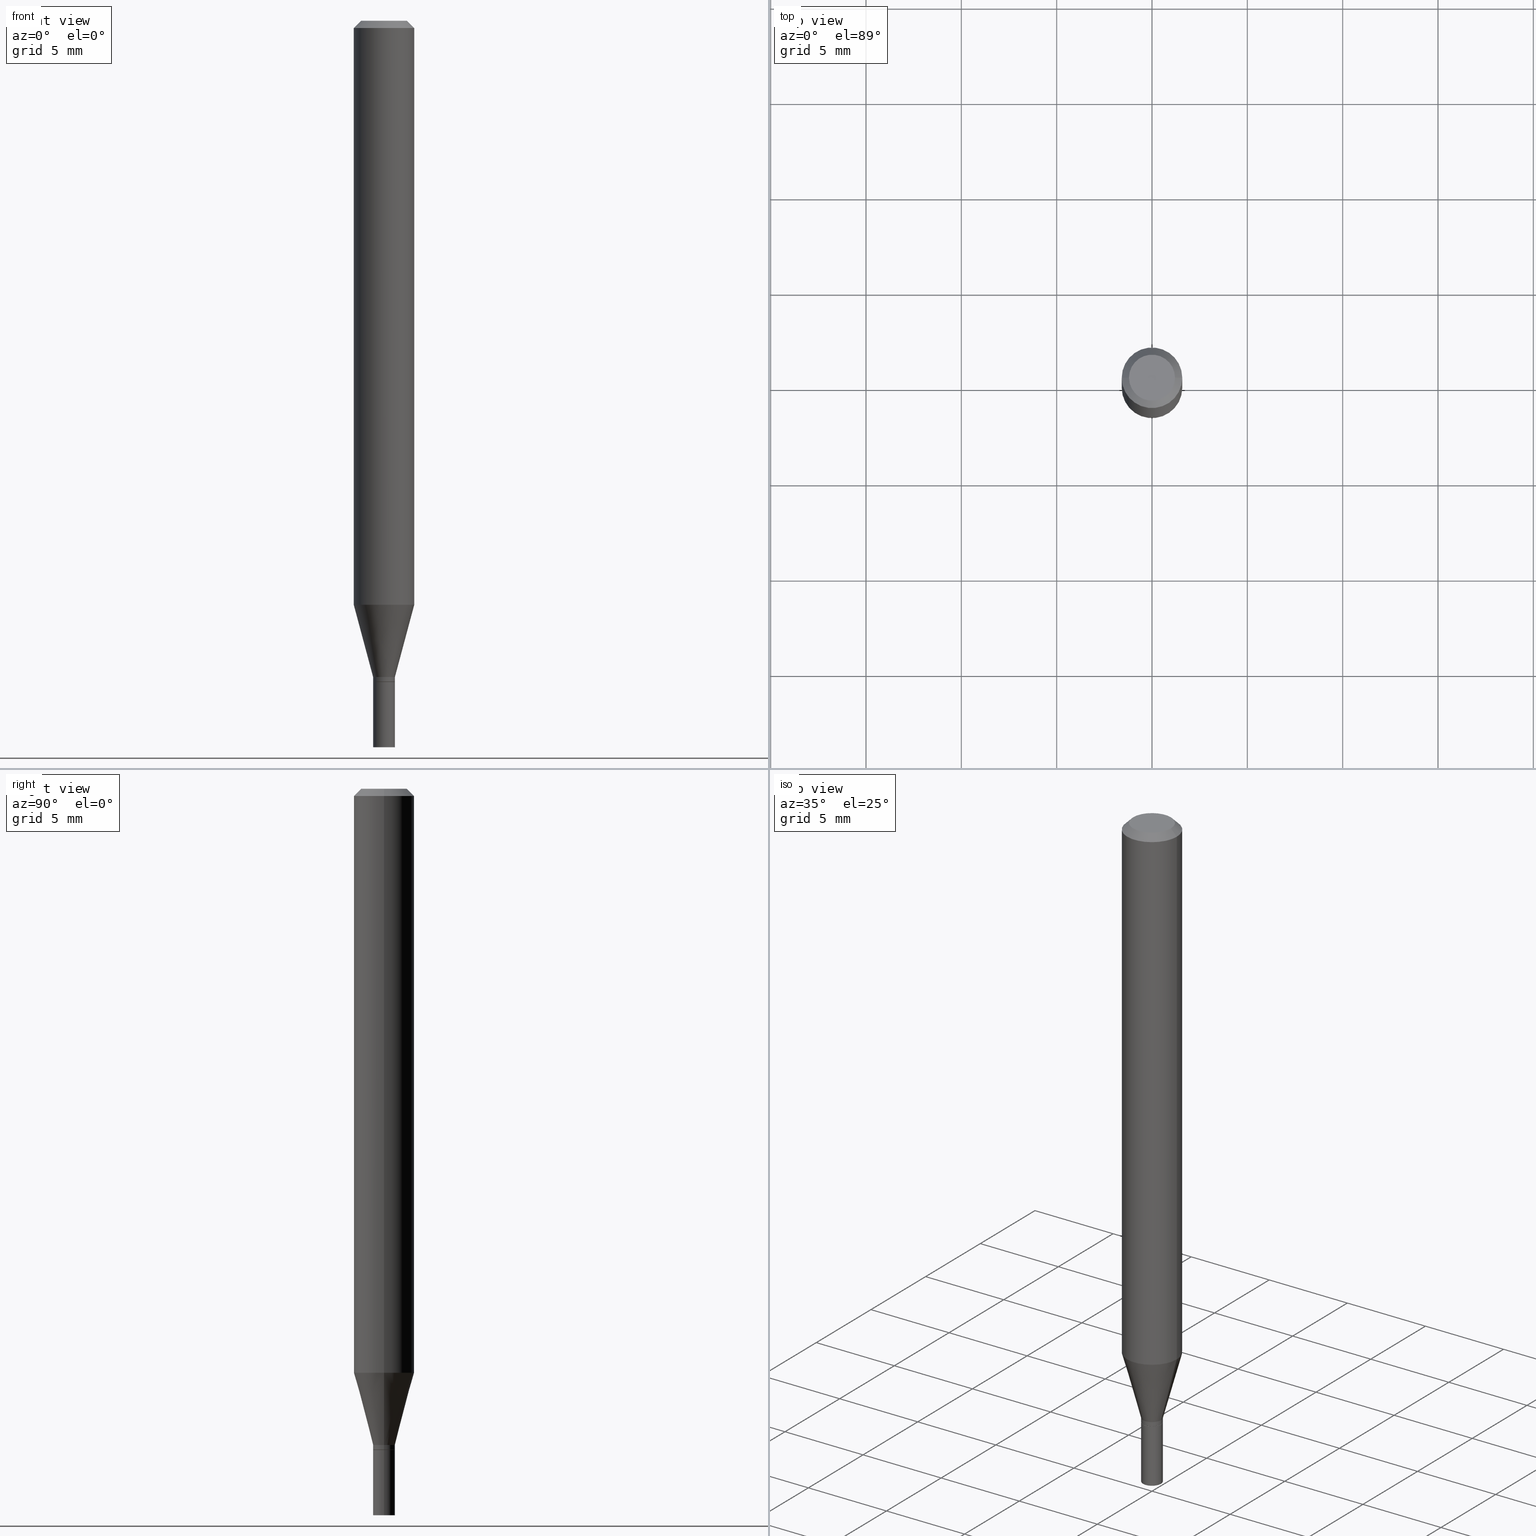
[diagram: canonical four-view strip — front | top / right | iso, engineering-drawing reading convention]
A machine part, canonical four-view strip (front | top / right | iso — engineering-drawing reading convention). The complete STEP part file that produces these views, byte-faithful:
ISO-10303-21;
HEADER;
FILE_DESCRIPTION (( 'STEP AP203' ),
    '1' );
FILE_NAME ('02474.STEP',
    '2024-03-18T20:49:02',
    ( '' ),
    ( '' ),
    'SwSTEP 2.0',
    'SolidWorks 2023',
    '' );
FILE_SCHEMA (( 'CONFIG_CONTROL_DESIGN' ));
ENDSEC;

DATA;
#1 = CARTESIAN_POINT ( 'NONE',  ( 2.948545679060551070E-29, -4.209741784122813615E-15, -1.205717967697245152 ) ) ;
#2 = CARTESIAN_POINT ( 'NONE',  ( 0.02249999999999991937, -4.888073874380403263E-15, -1.355000000000000204 ) ) ;
#3 = CARTESIAN_POINT ( 'NONE',  ( 3.338064920442711836E-29, -4.765872027520893280E-15, -1.364999999999999991 ) ) ;
#4 = CC_DESIGN_PERSON_AND_ORGANIZATION_ASSIGNMENT ( #61, #309, ( #304 ) ) ;
#5 = CARTESIAN_POINT ( 'NONE',  ( 3.338064920442711836E-29, -4.765872027520893280E-15, -1.364999999999999991 ) ) ;
#6 = ORIENTED_EDGE ( 'NONE', *, *, #122, .F. ) ;
#7 = EDGE_CURVE ( 'NONE', #165, #277, #445, .T. ) ;
#8 = DIRECTION ( 'NONE',  ( 1.000000000000000000, -6.982962677686269077E-15, 0.000000000000000000 ) ) ;
#9 = ORIENTED_EDGE ( 'NONE', *, *, #307, .T. ) ;
#10 = EDGE_CURVE ( 'NONE', #427, #78, #17, .T. ) ;
#11 = ORIENTED_EDGE ( 'NONE', *, *, #84, .T. ) ;
#12 = LENGTH_MEASURE_WITH_UNIT ( LENGTH_MEASURE( 0.02539999999999999897 ), #331 );
#13 = VECTOR ( 'NONE', #335, 39.37007874015748143 ) ;
#14 = ORIENTED_EDGE ( 'NONE', *, *, #357, .T. ) ;
#15 = DIRECTION ( 'NONE',  ( 1.000000000000000000, -6.982962677686265922E-15, 4.876176775795935793E-29 ) ) ;
#16 = CARTESIAN_POINT ( 'NONE',  ( 3.313610232380860851E-29, -4.730957214132463209E-15, -1.355000000000000204 ) ) ;
#17 = LINE ( 'NONE', #403, #249 ) ;
#18 = CALENDAR_DATE ( 2024, 18, 3 ) ;
#19 = CARTESIAN_POINT ( 'NONE',  ( 3.668203209277705088E-31, -5.237222008264718399E-17, -0.01499999999999999944 ) ) ;
#20 = APPROVAL_PERSON_ORGANIZATION ( #130, #431, #195 ) ;
#21 = PLANE ( 'NONE',  #185 ) ;
#22 = ADVANCED_FACE ( 'NONE', ( #450 ), #340, .T. ) ;
#23 = DIRECTION ( 'NONE',  ( -2.438088387897960049E-29, 3.491481338843145188E-15, 1.000000000000000000 ) ) ;
#24 = PRODUCT_DEFINITION ( 'UNKNOWN', '', #304, #410 ) ;
#25 = APPLICATION_PROTOCOL_DEFINITION ( 'international standard', 'config_control_design', 1994, #192 ) ;
#26 = EDGE_LOOP ( 'NONE', ( #408, #440, #57, #310 ) ) ;
#27 = AXIS2_PLACEMENT_3D ( 'NONE', #353, #429, #273 ) ;
#28 = DIRECTION ( 'NONE',  ( 2.445468806185136597E-29, -3.491481338843145583E-15, -1.000000000000000000 ) ) ;
#29 = EDGE_CURVE ( 'NONE', #145, #308, #438, .T. ) ;
#30 = ORIENTED_EDGE ( 'NONE', *, *, #348, .F. ) ;
#31 = FACE_OUTER_BOUND ( 'NONE', #128, .T. ) ;
#32 = SECURITY_CLASSIFICATION ( '', '', #313 ) ;
#33 = CARTESIAN_POINT ( 'NONE',  ( 0.02199999999999999872, -4.919497206429991117E-15, -1.364999999999999991 ) ) ;
#34 = DIRECTION ( 'NONE',  ( 1.000000000000000000, -6.982962677686266711E-15, 4.876176775795935793E-29 ) ) ;
#35 = FACE_OUTER_BOUND ( 'NONE', #291, .T. ) ;
#36 = VERTEX_POINT ( 'NONE', #183 ) ;
#37 = CARTESIAN_POINT ( 'NONE',  ( 0.000000000000000000, 0.000000000000000000, 0.000000000000000000 ) ) ;
#38 = VERTEX_POINT ( 'NONE', #411 ) ;
#39 = DIRECTION ( 'NONE',  ( -2.445468806185136597E-29, 3.491481338843145583E-15, 1.000000000000000000 ) ) ;
#40 = EDGE_CURVE ( 'NONE', #38, #36, #462, .T. ) ;
#41 = PLANE ( 'NONE',  #296 ) ;
#42 = ORIENTED_EDGE ( 'NONE', *, *, #7, .T. ) ;
#43 = APPLICATION_CONTEXT ( 'configuration controlled 3d designs of mechanical parts and assemblies' ) ;
#44 = VECTOR ( 'NONE', #72, 39.37007874015747433 ) ;
#45 = CC_DESIGN_DATE_AND_TIME_ASSIGNMENT ( #233, #390, ( #32 ) ) ;
#46 = MECHANICAL_CONTEXT ( 'NONE', #192, 'mechanical' ) ;
#47 = EDGE_LOOP ( 'NONE', ( #219, #14, #280, #6 ) ) ;
#48 = DIRECTION ( 'NONE',  ( 1.000000000000000000, -6.982962677686267499E-15, 4.852736867747366768E-29 ) ) ;
#49 = COORDINATED_UNIVERSAL_TIME_OFFSET ( 5, 0, .BEHIND. ) ;
#50 = CARTESIAN_POINT ( 'NONE',  ( 0.000000000000000000, 0.000000000000000000, 0.000000000000000000 ) ) ;
#51 = ORIENTED_EDGE ( 'NONE', *, *, #220, .F. ) ;
#52 = DIRECTION ( 'NONE',  ( 0.7071067811865420216, -7.319954787623237113E-15, -0.7071067811865530128 ) ) ;
#53 = ADVANCED_FACE ( 'NONE', ( #88 ), #443, .F. ) ;
#54 = AXIS2_PLACEMENT_3D ( 'NONE', #50, #448, #373 ) ;
#55 = CIRCLE ( 'NONE', #240, 0.02199999999999999872 ) ;
#56 = DIRECTION ( 'NONE',  ( -2.445468806185136877E-29, 3.491481338843145188E-15, 1.000000000000000000 ) ) ;
#57 = ORIENTED_EDGE ( 'NONE', *, *, #444, .F. ) ;
#58 = DIRECTION ( 'NONE',  ( -2.445468806185136597E-29, 3.491481338843145583E-15, 1.000000000000000000 ) ) ;
#59 = AXIS2_PLACEMENT_3D ( 'NONE', #1, #268, #63 ) ;
#60 = CIRCLE ( 'NONE', #148, 0.06250000000000000000 ) ;
#61 = PERSON_AND_ORGANIZATION ( #109, #126 ) ;
#62 = ORIENTED_EDGE ( 'NONE', *, *, #381, .F. ) ;
#63 = DIRECTION ( 'NONE',  ( 1.000000000000000000, -6.982962677686270655E-15, 0.000000000000000000 ) ) ;
#64 = LINE ( 'NONE', #461, #294 ) ;
#65 = CARTESIAN_POINT ( 'NONE',  ( 3.668203209277705088E-31, -5.237222008264718399E-17, -0.01499999999999999944 ) ) ;
#66 = CIRCLE ( 'NONE', #132, 0.02249999999999991937 ) ;
#67 = DATE_AND_TIME ( #426, #285 ) ;
#68 = DIMENSIONAL_EXPONENTS ( 1.000000000000000000, 0.000000000000000000, 0.000000000000000000, 0.000000000000000000, 0.000000000000000000, 0.000000000000000000, 0.000000000000000000 ) ;
#69 = DIRECTION ( 'NONE',  ( -2.445468806185136597E-29, 3.491481338843145583E-15, 1.000000000000000000 ) ) ;
#70 = FACE_OUTER_BOUND ( 'NONE', #129, .T. ) ;
#71 = EDGE_CURVE ( 'NONE', #190, #272, #123, .T. ) ;
#72 = DIRECTION ( 'NONE',  ( 0.2588190451025213501, 1.565188264969621968E-15, 0.9659258262890682012 ) ) ;
#73 = AXIS2_PLACEMENT_3D ( 'NONE', #423, #267, #34 ) ;
#74 = AXIS2_PLACEMENT_3D ( 'NONE', #144, #101, #230 ) ;
#75 = EDGE_LOOP ( 'NONE', ( #242, #94, #329, #374 ) ) ;
#76 = DIRECTION ( 'NONE',  ( 1.000000000000000000, -6.982962677686245411E-15, 0.000000000000000000 ) ) ;
#77 = ORIENTED_EDGE ( 'NONE', *, *, #338, .T. ) ;
#78 = VERTEX_POINT ( 'NONE', #116 ) ;
#79 = AXIS2_PLACEMENT_3D ( 'NONE', #289, #216, #48 ) ;
#80 = CC_DESIGN_PERSON_AND_ORGANIZATION_ASSIGNMENT ( #260, #92, ( #24 ) ) ;
#81 =( NAMED_UNIT ( * ) PLANE_ANGLE_UNIT ( ) SI_UNIT ( $, .RADIAN. ) );
#82 = CARTESIAN_POINT ( 'NONE',  ( 0.02199999999999999872, -4.919497206429991117E-15, -1.364999999999999991 ) ) ;
#83 = CARTESIAN_POINT ( 'NONE',  ( -0.02249999999999991937, -4.168368836429595565E-15, -1.355000000000000204 ) ) ;
#84 = EDGE_CURVE ( 'NONE', #36, #286, #124, .T. ) ;
#85 = APPROVAL ( #149, 'UNSPECIFIED' ) ;
#86 = AXIS2_PLACEMENT_3D ( 'NONE', #121, #366, #255 ) ;
#87 = AXIS2_PLACEMENT_3D ( 'NONE', #319, #279, #110 ) ;
#88 = FACE_OUTER_BOUND ( 'NONE', #352, .T. ) ;
#89 = DATE_AND_TIME ( #414, #421 ) ;
#90 = ORIENTED_EDGE ( 'NONE', *, *, #40, .F. ) ;
#91 = ORIENTED_EDGE ( 'NONE', *, *, #454, .T. ) ;
#92 = PERSON_AND_ORGANIZATION_ROLE ( 'creator' ) ;
#93 = FACE_OUTER_BOUND ( 'NONE', #434, .T. ) ;
#94 = ORIENTED_EDGE ( 'NONE', *, *, #102, .T. ) ;
#95 = VECTOR ( 'NONE', #52, 39.37007874015748143 ) ;
#96 = AXIS2_PLACEMENT_3D ( 'NONE', #336, #114, #191 ) ;
#97 = CYLINDRICAL_SURFACE ( 'NONE', #73, 0.02249999999999999917 ) ;
#98 = DIRECTION ( 'NONE',  ( -2.445468806185136877E-29, 3.491481338843145188E-15, 1.000000000000000000 ) ) ;
#99 = CARTESIAN_POINT ( 'NONE',  ( -0.02249999999999999917, -4.841674902346784228E-15, -1.500000000000000222 ) ) ;
#100 = ADVANCED_FACE ( 'NONE', ( #184 ), #158, .T. ) ;
#101 = DIRECTION ( 'NONE',  ( -2.445468806185136597E-29, 3.491481338843145583E-15, 1.000000000000000000 ) ) ;
#102 = EDGE_CURVE ( 'NONE', #112, #427, #117, .T. ) ;
#103 = DIRECTION ( 'NONE',  ( 1.000000000000000000, -6.982962677686245411E-15, 0.000000000000000000 ) ) ;
#104 = VECTOR ( 'NONE', #334, 39.37007874015748143 ) ;
#105 = SHAPE_DEFINITION_REPRESENTATION ( #407, #137 ) ;
#106 = DIRECTION ( 'NONE',  ( -2.445468806185136597E-29, 3.491481338843145583E-15, 1.000000000000000000 ) ) ;
#107 = ORIENTED_EDGE ( 'NONE', *, *, #236, .T. ) ;
#108 = DIRECTION ( 'NONE',  ( -1.000000000000000000, 6.982962677686265922E-15, -4.876176775795935793E-29 ) ) ;
#109 = PERSON ( 'UNSPECIFIED', 'UNSPECIFIED', 'UNSPECIFIED', ('UNSPECIFIED'), ('UNSPECIFIED'), ('UNSPECIFIED') ) ;
#110 = DIRECTION ( 'NONE',  ( 1.000000000000000000, -6.982962677686248567E-15, 0.000000000000000000 ) ) ;
#111 = CONICAL_SURFACE ( 'NONE', #405, 0.06250000000000000000, 0.7853981633974405074 ) ;
#112 = VERTEX_POINT ( 'NONE', #83 ) ;
#113 = APPROVAL_ROLE ( '' ) ;
#114 = DIRECTION ( 'NONE',  ( -2.445468806185136597E-29, 3.491481338843145583E-15, 1.000000000000000000 ) ) ;
#115 = ORIENTED_EDGE ( 'NONE', *, *, #307, .F. ) ;
#116 = CARTESIAN_POINT ( 'NONE',  ( -0.06250000000000000000, -1.686967792252667731E-15, -0.01499999999999999944 ) ) ;
#117 = LINE ( 'NONE', #248, #386 ) ;
#118 = AXIS2_PLACEMENT_3D ( 'NONE', #303, #28, #380 ) ;
#119 = LOCAL_TIME ( 16, 49, 2.000000000000000000, #387 ) ;
#120 = EDGE_CURVE ( 'NONE', #318, #190, #451, .T. ) ;
#121 = CARTESIAN_POINT ( 'NONE',  ( 3.668203209277704895E-29, -5.237222008264718177E-15, -1.500000000000000222 ) ) ;
#122 = EDGE_CURVE ( 'NONE', #78, #286, #312, .T. ) ;
#123 = LINE ( 'NONE', #406, #13 ) ;
#124 = LINE ( 'NONE', #245, #95 ) ;
#125 = DATE_AND_TIME ( #18, #212 ) ;
#126 = ORGANIZATION ( 'UNSPECIFIED', 'UNSPECIFIED', '' ) ;
#127 = CARTESIAN_POINT ( 'NONE',  ( -0.02199999999999999872, -4.609552625653671101E-15, -1.364999999999999991 ) ) ;
#128 = EDGE_LOOP ( 'NONE', ( #315, #458, #263, #400 ) ) ;
#129 = EDGE_LOOP ( 'NONE', ( #77, #91, #30, #452 ) ) ;
#130 = PERSON_AND_ORGANIZATION ( #109, #126 ) ;
#131 = EDGE_LOOP ( 'NONE', ( #266, #398, #51, #354 ) ) ;
#132 = AXIS2_PLACEMENT_3D ( 'NONE', #16, #152, #378 ) ;
#133 =( GEOMETRIC_REPRESENTATION_CONTEXT ( 3 ) GLOBAL_UNCERTAINTY_ASSIGNED_CONTEXT ( ( #368 ) ) GLOBAL_UNIT_ASSIGNED_CONTEXT ( ( #243, #81, #287 ) ) REPRESENTATION_CONTEXT ( 'NONE', 'WORKASPACE' ) );
#134 = ADVANCED_FACE ( 'NONE', ( #370 ), #21, .F. ) ;
#135 = CARTESIAN_POINT ( 'NONE',  ( -0.02249999999999992284, -4.604254171305449488E-15, -1.364500000000000046 ) ) ;
#136 = DIRECTION ( 'NONE',  ( -2.445468806185136877E-29, 3.491481338843145188E-15, 1.000000000000000000 ) ) ;
#137 = ADVANCED_BREP_SHAPE_REPRESENTATION ( '02474', ( #344, #343, #186 ), #133 ) ;
#138 = CALENDAR_DATE ( 2024, 18, 3 ) ;
#139 = EDGE_LOOP ( 'NONE', ( #465, #90, #372, #198 ) ) ;
#140 = CARTESIAN_POINT ( 'NONE',  ( 3.338064920442711836E-29, -4.765872027520893280E-15, -1.364999999999999991 ) ) ;
#141 = DIRECTION ( 'NONE',  ( -2.445468806185136597E-29, 3.491481338843145583E-15, 1.000000000000000000 ) ) ;
#142 = CIRCLE ( 'NONE', #87, 0.02249999999999992284 ) ;
#143 = CYLINDRICAL_SURFACE ( 'NONE', #395, 0.02249999999999999917 ) ;
#144 = CARTESIAN_POINT ( 'NONE',  ( 2.948545679060551070E-29, -4.209741784122813615E-15, -1.205717967697245152 ) ) ;
#145 = VERTEX_POINT ( 'NONE', #99 ) ;
#146 = COORDINATED_UNIVERSAL_TIME_OFFSET ( 5, 0, .BEHIND. ) ;
#147 = AXIS2_PLACEMENT_3D ( 'NONE', #226, #222, #232 ) ;
#148 = AXIS2_PLACEMENT_3D ( 'NONE', #179, #154, #456 ) ;
#149 = APPROVAL_STATUS ( 'not_yet_approved' ) ;
#150 = ADVANCED_FACE ( 'NONE', ( #93 ), #383, .F. ) ;
#151 = DIRECTION ( 'NONE',  ( 1.000000000000000000, -6.982962677686249356E-15, 0.000000000000000000 ) ) ;
#152 = DIRECTION ( 'NONE',  ( -2.445468806185136597E-29, 3.491481338843145583E-15, 1.000000000000000000 ) ) ;
#153 = EDGE_CURVE ( 'NONE', #375, #427, #358, .T. ) ;
#154 = DIRECTION ( 'NONE',  ( -2.445468806185136597E-29, 3.491481338843145583E-15, 1.000000000000000000 ) ) ;
#155 = DIRECTION ( 'NONE',  ( 1.000000000000000000, -6.982962677686266711E-15, 0.000000000000000000 ) ) ;
#156 = LOCAL_TIME ( 16, 49, 2.000000000000000000, #49 ) ;
#157 = CARTESIAN_POINT ( 'NONE',  ( 3.576687321579069994E-29, -5.368277968210015545E-15, -1.500000000000000222 ) ) ;
#158 = CYLINDRICAL_SURFACE ( 'NONE', #224, 0.06250000000000000000 ) ;
#159 = PERSON_AND_ORGANIZATION ( #109, #126 ) ;
#160 = AXIS2_PLACEMENT_3D ( 'NONE', #271, #251, #151 ) ;
#161 = PERSON_AND_ORGANIZATION_ROLE ( 'classification_officer' ) ;
#162 = EDGE_CURVE ( 'NONE', #375, #286, #64, .T. ) ;
#163 = EDGE_LOOP ( 'NONE', ( #327, #107, #415, #282 ) ) ;
#164 = APPROVAL_STATUS ( 'not_yet_approved' ) ;
#165 = VERTEX_POINT ( 'NONE', #466 ) ;
#166 = VECTOR ( 'NONE', #385, 39.37007874015748143 ) ;
#167 = AXIS2_PLACEMENT_3D ( 'NONE', #356, #389, #238 ) ;
#168 = DIRECTION ( 'NONE',  ( -1.000000000000000000, 6.982962677686265922E-15, -4.876176775795935793E-29 ) ) ;
#169 = ORIENTED_EDGE ( 'NONE', *, *, #254, .T. ) ;
#170 = DIRECTION ( 'NONE',  ( -1.000000000000000000, 6.982962677686266711E-15, 0.000000000000000000 ) ) ;
#171 = CARTESIAN_POINT ( 'NONE',  ( 0.02249999999999991937, -4.888073874380403263E-15, -1.355000000000000204 ) ) ;
#172 = DIRECTION ( 'NONE',  ( -2.445468806185136597E-29, 3.491481338843145583E-15, 1.000000000000000000 ) ) ;
#173 = CLOSED_SHELL ( 'NONE', ( #420, #416, #194, #223, #457, #325, #100, #391, #397, #53, #369, #22 ) ) ;
#174 = FACE_OUTER_BOUND ( 'NONE', #302, .T. ) ;
#175 = VERTEX_POINT ( 'NONE', #135 ) ;
#176 = EDGE_CURVE ( 'NONE', #175, #112, #425, .T. ) ;
#177 = CARTESIAN_POINT ( 'NONE',  ( 3.316907271900976096E-16, 0.04749999999999999362, -4.881874950129340235E-17 ) ) ;
#178 = LINE ( 'NONE', #311, #166 ) ;
#179 = CARTESIAN_POINT ( 'NONE',  ( 3.668203209277705088E-31, -5.237222008264718399E-17, -0.01499999999999999944 ) ) ;
#180 = AXIS2_PLACEMENT_3D ( 'NONE', #19, #214, #155 ) ;
#181 = CONICAL_SURFACE ( 'NONE', #96, 0.02249999999999991937, 0.2617993877991500740 ) ;
#182 = CARTESIAN_POINT ( 'NONE',  ( -0.02249999999999999917, 1.598721155460225359E-16, -1.106760395307353780E-30 ) ) ;
#183 = CARTESIAN_POINT ( 'NONE',  ( 0.04749999999999999362, -4.035134999187574186E-16, 2.340532281875146013E-16 ) ) ;
#184 = FACE_OUTER_BOUND ( 'NONE', #47, .T. ) ;
#185 = AXIS2_PLACEMENT_3D ( 'NONE', #157, #253, #418 ) ;
#186 = AXIS2_PLACEMENT_3D ( 'NONE', #189, #284, #441 ) ;
#187 = DIRECTION ( 'NONE',  ( -2.445468806185136597E-29, 3.491481338843145583E-15, 1.000000000000000000 ) ) ;
#188 = ORIENTED_EDGE ( 'NONE', *, *, #254, .F. ) ;
#189 = CARTESIAN_POINT ( 'NONE',  ( 0.000000000000000000, 0.000000000000000000, 0.000000000000000000 ) ) ;
#190 = VERTEX_POINT ( 'NONE', #229 ) ;
#191 = DIRECTION ( 'NONE',  ( 1.000000000000000000, -6.982962677686249356E-15, 0.000000000000000000 ) ) ;
#192 = APPLICATION_CONTEXT ( 'configuration controlled 3d designs of mechanical parts and assemblies' ) ;
#193 = CONICAL_SURFACE ( 'NONE', #265, 0.02199999999999999872, 0.7853981633974739252 ) ;
#194 = ADVANCED_FACE ( 'NONE', ( #225 ), #394, .T. ) ;
#195 = APPROVAL_ROLE ( '' ) ;
#196 = ADVANCED_FACE ( 'NONE', ( #31 ), #97, .T. ) ;
#197 = CYLINDRICAL_SURFACE ( 'NONE', #167, 0.02249999999999992284 ) ;
#198 = ORIENTED_EDGE ( 'NONE', *, *, #122, .T. ) ;
#199 = CARTESIAN_POINT ( 'NONE',  ( 3.336842186039619034E-29, -4.764126286851473355E-15, -1.364500000000000046 ) ) ;
#200 = DIRECTION ( 'NONE',  ( 1.000000000000000000, -6.982962677686245411E-15, 0.000000000000000000 ) ) ;
#201 = ORIENTED_EDGE ( 'NONE', *, *, #437, .F. ) ;
#202 = AXIS2_PLACEMENT_3D ( 'NONE', #140, #270, #8 ) ;
#203 = DIRECTION ( 'NONE',  ( 1.000000000000000000, -6.982962677686245411E-15, 0.000000000000000000 ) ) ;
#204 = CC_DESIGN_APPROVAL ( #85, ( #304 ) ) ;
#205 = EDGE_CURVE ( 'NONE', #38, #78, #178, .T. ) ;
#206 = ORIENTED_EDGE ( 'NONE', *, *, #454, .F. ) ;
#207 = LINE ( 'NONE', #362, #412 ) ;
#208 = ORIENTED_EDGE ( 'NONE', *, *, #317, .T. ) ;
#209 = CALENDAR_DATE ( 2024, 18, 3 ) ;
#210 = ORIENTED_EDGE ( 'NONE', *, *, #120, .T. ) ;
#211 = DIRECTION ( 'NONE',  ( 1.000000000000000000, -6.982962677686266711E-15, 4.876176775795935793E-29 ) ) ;
#212 = LOCAL_TIME ( 16, 49, 2.000000000000000000, #376 ) ;
#213 = APPROVAL_STATUS ( 'not_yet_approved' ) ;
#214 = DIRECTION ( 'NONE',  ( -2.445468806185136597E-29, 3.491481338843145583E-15, 1.000000000000000000 ) ) ;
#215 = EDGE_LOOP ( 'NONE', ( #283, #169, #208, #244 ) ) ;
#216 = DIRECTION ( 'NONE',  ( -2.445468806185136597E-29, 3.491481338843145583E-15, 1.000000000000000000 ) ) ;
#217 = CIRCLE ( 'NONE', #160, 0.02249999999999991937 ) ;
#218 = AXIS2_PLACEMENT_3D ( 'NONE', #435, #141, #200 ) ;
#219 = ORIENTED_EDGE ( 'NONE', *, *, #10, .F. ) ;
#220 = EDGE_CURVE ( 'NONE', #272, #112, #217, .T. ) ;
#221 = EDGE_LOOP ( 'NONE', ( #347, #297, #379, #188 ) ) ;
#222 = DIRECTION ( 'NONE',  ( -2.445468806185136597E-29, 3.491481338843145583E-15, 1.000000000000000000 ) ) ;
#223 = ADVANCED_FACE ( 'NONE', ( #288 ), #442, .T. ) ;
#224 = AXIS2_PLACEMENT_3D ( 'NONE', #409, #187, #292 ) ;
#225 = FACE_OUTER_BOUND ( 'NONE', #361, .T. ) ;
#226 = CARTESIAN_POINT ( 'NONE',  ( 3.668203209277704895E-29, -5.237222008264718177E-15, -1.500000000000000222 ) ) ;
#227 = APPROVAL_DATE_TIME ( #67, #431 ) ;
#228 = DIRECTION ( 'NONE',  ( -2.445468806185136597E-29, 3.491481338843145583E-15, 1.000000000000000000 ) ) ;
#229 = CARTESIAN_POINT ( 'NONE',  ( 0.02249999999999992284, -4.921242947099412620E-15, -1.364500000000000046 ) ) ;
#230 = DIRECTION ( 'NONE',  ( 1.000000000000000000, -6.982962677686270655E-15, 0.000000000000000000 ) ) ;
#231 = AXIS2_PLACEMENT_3D ( 'NONE', #5, #69, #203 ) ;
#232 = DIRECTION ( 'NONE',  ( 1.000000000000000000, -6.982962677686269077E-15, 0.000000000000000000 ) ) ;
#233 = DATE_AND_TIME ( #138, #119 ) ;
#234 = CARTESIAN_POINT ( 'NONE',  ( 3.338064920442711836E-29, -4.765872027520893280E-15, -1.364999999999999991 ) ) ;
#235 = CARTESIAN_POINT ( 'NONE',  ( -0.06250000000000001388, -3.765652574272750998E-15, -1.205717967697245152 ) ) ;
#236 = EDGE_CURVE ( 'NONE', #145, #277, #365, .T. ) ;
#237 = AXIS2_PLACEMENT_3D ( 'NONE', #252, #23, #15 ) ;
#238 = DIRECTION ( 'NONE',  ( 1.000000000000000000, -6.982962677686265922E-15, 4.876176775795935793E-29 ) ) ;
#239 = CC_DESIGN_PERSON_AND_ORGANIZATION_ASSIGNMENT ( #159, #332, ( #246 ) ) ;
#240 = AXIS2_PLACEMENT_3D ( 'NONE', #3, #39, #76 ) ;
#241 = APPROVAL_DATE_TIME ( #89, #85 ) ;
#242 = ORIENTED_EDGE ( 'NONE', *, *, #220, .T. ) ;
#243 =( CONVERSION_BASED_UNIT ( 'INCH', #12 ) LENGTH_UNIT ( ) NAMED_UNIT ( #68 ) );
#244 = ORIENTED_EDGE ( 'NONE', *, *, #357, .F. ) ;
#245 = CARTESIAN_POINT ( 'NONE',  ( 0.06250000000000000000, -4.811533449433679005E-16, -0.01499999999999999944 ) ) ;
#246 = PRODUCT ( '02474', '02474', '', ( #46 ) ) ;
#247 = APPLICATION_PROTOCOL_DEFINITION ( 'international standard', 'config_control_design', 1994, #43 ) ;
#248 = CARTESIAN_POINT ( 'NONE',  ( -0.02249999999999991937, -4.571085098586440920E-15, -1.355000000000000204 ) ) ;
#249 = VECTOR ( 'NONE', #56, 39.37007874015748143 ) ;
#250 = AXIS2_PLACEMENT_3D ( 'NONE', #393, #58, #417 ) ;
#251 = DIRECTION ( 'NONE',  ( -2.445468806185136597E-29, 3.491481338843145583E-15, 1.000000000000000000 ) ) ;
#252 = CARTESIAN_POINT ( 'NONE',  ( 3.338064920442711836E-29, -4.765872027520893280E-15, -1.364999999999999991 ) ) ;
#253 = DIRECTION ( 'NONE',  ( -2.438088387897960049E-29, 3.491481338843145188E-15, 1.000000000000000000 ) ) ;
#254 = EDGE_CURVE ( 'NONE', #112, #272, #66, .T. ) ;
#255 = DIRECTION ( 'NONE',  ( 1.000000000000000000, -6.982962677686269077E-15, 0.000000000000000000 ) ) ;
#256 = VECTOR ( 'NONE', #337, 39.37007874015748143 ) ;
#257 = CIRCLE ( 'NONE', #314, 0.02249999999999992284 ) ;
#258 = PERSON_AND_ORGANIZATION ( #109, #126 ) ;
#259 = ORIENTED_EDGE ( 'NONE', *, *, #262, .F. ) ;
#260 = PERSON_AND_ORGANIZATION ( #109, #126 ) ;
#261 = ORIENTED_EDGE ( 'NONE', *, *, #298, .T. ) ;
#262 = EDGE_CURVE ( 'NONE', #308, #145, #371, .T. ) ;
#263 = ORIENTED_EDGE ( 'NONE', *, *, #278, .T. ) ;
#264 = VECTOR ( 'NONE', #98, 39.37007874015748143 ) ;
#265 = AXIS2_PLACEMENT_3D ( 'NONE', #234, #106, #103 ) ;
#266 = ORIENTED_EDGE ( 'NONE', *, *, #348, .T. ) ;
#267 = DIRECTION ( 'NONE',  ( -2.445468806185136597E-29, 3.491481338843145583E-15, 1.000000000000000000 ) ) ;
#268 = DIRECTION ( 'NONE',  ( -2.445468806185136597E-29, 3.491481338843145583E-15, 1.000000000000000000 ) ) ;
#269 = ORIENTED_EDGE ( 'NONE', *, *, #205, .F. ) ;
#270 = DIRECTION ( 'NONE',  ( -2.445468806185136597E-29, 3.491481338843145583E-15, 1.000000000000000000 ) ) ;
#271 = CARTESIAN_POINT ( 'NONE',  ( 3.313610232380860851E-29, -4.730957214132463209E-15, -1.355000000000000204 ) ) ;
#272 = VERTEX_POINT ( 'NONE', #2 ) ;
#273 = DIRECTION ( 'NONE',  ( 1.000000000000000000, -6.982962677686249356E-15, 0.000000000000000000 ) ) ;
#274 = APPROVAL ( #213, 'UNSPECIFIED' ) ;
#275 = CONICAL_SURFACE ( 'NONE', #27, 0.02249999999999991937, 0.2617993877991500740 ) ;
#276 = FACE_OUTER_BOUND ( 'NONE', #163, .T. ) ;
#277 = VERTEX_POINT ( 'NONE', #433 ) ;
#278 = EDGE_CURVE ( 'NONE', #308, #165, #207, .T. ) ;
#279 = DIRECTION ( 'NONE',  ( -2.445468806185136597E-29, 3.491481338843145583E-15, 1.000000000000000000 ) ) ;
#280 = ORIENTED_EDGE ( 'NONE', *, *, #162, .T. ) ;
#281 = CARTESIAN_POINT ( 'NONE',  ( 0.06250000000000001388, -4.646176951478205284E-15, -1.205717967697245152 ) ) ;
#282 = ORIENTED_EDGE ( 'NONE', *, *, #278, .F. ) ;
#283 = ORIENTED_EDGE ( 'NONE', *, *, #102, .F. ) ;
#284 = DIRECTION ( 'NONE',  ( 0.000000000000000000, 0.000000000000000000, 1.000000000000000000 ) ) ;
#285 = LOCAL_TIME ( 16, 49, 2.000000000000000000, #345 ) ;
#286 = VERTEX_POINT ( 'NONE', #326 ) ;
#287 =( NAMED_UNIT ( * ) SI_UNIT ( $, .STERADIAN. ) SOLID_ANGLE_UNIT ( ) );
#288 = FACE_OUTER_BOUND ( 'NONE', #26, .T. ) ;
#289 = CARTESIAN_POINT ( 'NONE',  ( -5.723698685194923234E-45, 8.171924785126947293E-31, 2.340532281875119882E-16 ) ) ;
#290 = LINE ( 'NONE', #127, #463 ) ;
#291 = EDGE_LOOP ( 'NONE', ( #206, #9, #210, #62 ) ) ;
#292 = DIRECTION ( 'NONE',  ( 1.000000000000000000, -6.982962677686266711E-15, 4.876176775795935793E-29 ) ) ;
#293 = APPROVAL_ROLE ( '' ) ;
#294 = VECTOR ( 'NONE', #316, 39.37007874015748143 ) ;
#295 = CLOSED_SHELL ( 'NONE', ( #424, #134, #196, #150 ) ) ;
#296 = AXIS2_PLACEMENT_3D ( 'NONE', #177, #396, #108 ) ;
#297 = ORIENTED_EDGE ( 'NONE', *, *, #381, .T. ) ;
#298 = EDGE_CURVE ( 'NONE', #277, #165, #330, .T. ) ;
#299 = DIRECTION ( 'NONE',  ( 1.000000000000000000, -6.982962677686269077E-15, 0.000000000000000000 ) ) ;
#300 = CC_DESIGN_PERSON_AND_ORGANIZATION_ASSIGNMENT ( #399, #459, ( #304 ) ) ;
#301 = DIRECTION ( 'NONE',  ( -0.2588190451025213501, 5.211531920934551042E-15, 0.9659258262890682012 ) ) ;
#302 = EDGE_LOOP ( 'NONE', ( #306, #363 ) ) ;
#303 = CARTESIAN_POINT ( 'NONE',  ( 3.668203209277705088E-31, -5.237222008264718399E-17, -0.01499999999999999944 ) ) ;
#304 = PRODUCT_DEFINITION_FORMATION_WITH_SPECIFIED_SOURCE ( 'ANY', '', #246, .NOT_KNOWN. ) ;
#305 = DATE_AND_TIME ( #209, #156 ) ;
#306 = ORIENTED_EDGE ( 'NONE', *, *, #40, .T. ) ;
#307 = EDGE_CURVE ( 'NONE', #460, #318, #453, .T. ) ;
#308 = VERTEX_POINT ( 'NONE', #328 ) ;
#309 = PERSON_AND_ORGANIZATION_ROLE ( 'design_supplier' ) ;
#310 = ORIENTED_EDGE ( 'NONE', *, *, #162, .F. ) ;
#311 = CARTESIAN_POINT ( 'NONE',  ( -0.06250000000000000000, 3.840629472727444916E-16, -0.01499999999999999944 ) ) ;
#312 = CIRCLE ( 'NONE', #180, 0.06250000000000000000 ) ;
#313 = SECURITY_CLASSIFICATION_LEVEL ( 'unclassified' ) ;
#314 = AXIS2_PLACEMENT_3D ( 'NONE', #199, #320, #392 ) ;
#315 = ORIENTED_EDGE ( 'NONE', *, *, #236, .F. ) ;
#316 = DIRECTION ( 'NONE',  ( -2.445468806185136877E-29, 3.491481338843145188E-15, 1.000000000000000000 ) ) ;
#317 = EDGE_CURVE ( 'NONE', #272, #375, #430, .T. ) ;
#318 = VERTEX_POINT ( 'NONE', #33 ) ;
#319 = CARTESIAN_POINT ( 'NONE',  ( 3.336842186039619034E-29, -4.764126286851473355E-15, -1.364500000000000046 ) ) ;
#320 = DIRECTION ( 'NONE',  ( -2.445468806185136597E-29, 3.491481338843145583E-15, 1.000000000000000000 ) ) ;
#321 = ORIENTED_EDGE ( 'NONE', *, *, #444, .T. ) ;
#322 = AXIS2_PLACEMENT_3D ( 'NONE', #350, #382, #168 ) ;
#323 = APPROVAL_PERSON_ORGANIZATION ( #258, #85, #113 ) ;
#324 = DIRECTION ( 'NONE',  ( 1.000000000000000000, -6.982962677686266711E-15, 4.876176775795935793E-29 ) ) ;
#325 = ADVANCED_FACE ( 'NONE', ( #355 ), #275, .T. ) ;
#326 = CARTESIAN_POINT ( 'NONE',  ( 0.06250000000000000000, -4.888073874380388472E-16, -0.01499999999999999944 ) ) ;
#327 = ORIENTED_EDGE ( 'NONE', *, *, #262, .T. ) ;
#328 = CARTESIAN_POINT ( 'NONE',  ( 0.02249999999999999917, -5.394338668512659809E-15, -1.500000000000000222 ) ) ;
#329 = ORIENTED_EDGE ( 'NONE', *, *, #153, .F. ) ;
#330 = CIRCLE ( 'NONE', #202, 0.02249999999999999917 ) ;
#331 =( LENGTH_UNIT ( ) NAMED_UNIT ( * ) SI_UNIT ( $, .METRE. ) );
#332 = PERSON_AND_ORGANIZATION_ROLE ( 'design_owner' ) ;
#333 = CC_DESIGN_DATE_AND_TIME_ASSIGNMENT ( #125, #446, ( #24 ) ) ;
#334 = DIRECTION ( 'NONE',  ( -2.445468806185136877E-29, 3.491481338843145188E-15, 1.000000000000000000 ) ) ;
#335 = DIRECTION ( 'NONE',  ( -2.445468806185136877E-29, 3.491481338843145188E-15, 1.000000000000000000 ) ) ;
#336 = CARTESIAN_POINT ( 'NONE',  ( 3.313610232380860851E-29, -4.730957214132463209E-15, -1.355000000000000204 ) ) ;
#337 = DIRECTION ( 'NONE',  ( 0.7071067811865656694, -2.468850131082446387E-15, 0.7071067811865294761 ) ) ;
#338 = EDGE_CURVE ( 'NONE', #318, #460, #55, .T. ) ;
#339 = AXIS2_PLACEMENT_3D ( 'NONE', #449, #402, #211 ) ;
#340 = CYLINDRICAL_SURFACE ( 'NONE', #54, 0.02249999999999992284 ) ;
#341 = FACE_OUTER_BOUND ( 'NONE', #75, .T. ) ;
#342 = PRODUCT_RELATED_PRODUCT_CATEGORY ( 'detail', '', ( #246 ) ) ;
#343 = MANIFOLD_SOLID_BREP ( 'Body-Move/Copy2[2]', #173 ) ;
#344 = MANIFOLD_SOLID_BREP ( 'Body-Move/Copy2[1]', #295 ) ;
#345 = COORDINATED_UNIVERSAL_TIME_OFFSET ( 5, 0, .BEHIND. ) ;
#346 = ORIENTED_EDGE ( 'NONE', *, *, #29, .F. ) ;
#347 = ORIENTED_EDGE ( 'NONE', *, *, #176, .F. ) ;
#348 = EDGE_CURVE ( 'NONE', #190, #175, #142, .T. ) ;
#349 = EDGE_LOOP ( 'NONE', ( #259, #346 ) ) ;
#350 = CARTESIAN_POINT ( 'NONE',  ( 1.571166602479743698E-16, 0.02249999999999523215, -1.364999999999999991 ) ) ;
#351 = CIRCLE ( 'NONE', #250, 0.04749999999999999362 ) ;
#352 = EDGE_LOOP ( 'NONE', ( #419, #115 ) ) ;
#353 = CARTESIAN_POINT ( 'NONE',  ( 3.313610232380860851E-29, -4.730957214132463209E-15, -1.355000000000000204 ) ) ;
#354 = ORIENTED_EDGE ( 'NONE', *, *, #71, .F. ) ;
#355 = FACE_OUTER_BOUND ( 'NONE', #215, .T. ) ;
#356 = CARTESIAN_POINT ( 'NONE',  ( 0.000000000000000000, 0.000000000000000000, 0.000000000000000000 ) ) ;
#357 = EDGE_CURVE ( 'NONE', #427, #375, #413, .T. ) ;
#358 = CIRCLE ( 'NONE', #59, 0.06250000000000000000 ) ;
#359 = APPROVAL_PERSON_ORGANIZATION ( #404, #274, #293 ) ;
#360 = DIRECTION ( 'NONE',  ( 2.445468806185136597E-29, -3.491481338843145583E-15, -1.000000000000000000 ) ) ;
#361 = EDGE_LOOP ( 'NONE', ( #201, #11, #321, #269 ) ) ;
#362 = CARTESIAN_POINT ( 'NONE',  ( 0.02249999999999999917, -1.571166602479409911E-16, 1.097139774554085483E-30 ) ) ;
#363 = ORIENTED_EDGE ( 'NONE', *, *, #437, .T. ) ;
#364 = DIRECTION ( 'NONE',  ( -0.7071067811865656694, 7.493145998870420424E-15, 0.7071067811865294761 ) ) ;
#365 = LINE ( 'NONE', #182, #104 ) ;
#366 = DIRECTION ( 'NONE',  ( -2.445468806185136597E-29, 3.491481338843145583E-15, 1.000000000000000000 ) ) ;
#367 = APPROVAL_DATE_TIME ( #305, #274 ) ;
#368 = UNCERTAINTY_MEASURE_WITH_UNIT (LENGTH_MEASURE( 1.000000000000000082E-05 ), #243, 'distance_accuracy_value', 'NONE');
#369 = ADVANCED_FACE ( 'NONE', ( #35 ), #193, .T. ) ;
#370 = FACE_OUTER_BOUND ( 'NONE', #349, .T. ) ;
#371 = CIRCLE ( 'NONE', #147, 0.02249999999999999917 ) ;
#372 = ORIENTED_EDGE ( 'NONE', *, *, #205, .T. ) ;
#373 = DIRECTION ( 'NONE',  ( 1.000000000000000000, -6.982962677686265922E-15, 4.876176775795935793E-29 ) ) ;
#374 = ORIENTED_EDGE ( 'NONE', *, *, #317, .F. ) ;
#375 = VERTEX_POINT ( 'NONE', #281 ) ;
#376 = COORDINATED_UNIVERSAL_TIME_OFFSET ( 5, 0, .BEHIND. ) ;
#377 = CC_DESIGN_PERSON_AND_ORGANIZATION_ASSIGNMENT ( #464, #161, ( #32 ) ) ;
#378 = DIRECTION ( 'NONE',  ( 1.000000000000000000, -6.982962677686249356E-15, 0.000000000000000000 ) ) ;
#379 = ORIENTED_EDGE ( 'NONE', *, *, #71, .T. ) ;
#380 = DIRECTION ( 'NONE',  ( -1.000000000000000000, 6.982962677686266711E-15, 0.000000000000000000 ) ) ;
#381 = EDGE_CURVE ( 'NONE', #175, #190, #257, .T. ) ;
#382 = DIRECTION ( 'NONE',  ( 2.438088387897960049E-29, -3.491481338843145188E-15, -1.000000000000000000 ) ) ;
#383 = PLANE ( 'NONE',  #322 ) ;
#384 = FACE_OUTER_BOUND ( 'NONE', #139, .T. ) ;
#385 = DIRECTION ( 'NONE',  ( -0.7071067811865420216, 2.468850131082199474E-15, -0.7071067811865530128 ) ) ;
#386 = VECTOR ( 'NONE', #301, 39.37007874015747433 ) ;
#387 = COORDINATED_UNIVERSAL_TIME_OFFSET ( 5, 0, .BEHIND. ) ;
#388 = CC_DESIGN_APPROVAL ( #431, ( #32 ) ) ;
#389 = DIRECTION ( 'NONE',  ( -2.445468806185136597E-29, 3.491481338843145583E-15, 1.000000000000000000 ) ) ;
#390 = DATE_TIME_ROLE ( 'classification_date' ) ;
#391 = ADVANCED_FACE ( 'NONE', ( #384 ), #111, .T. ) ;
#392 = DIRECTION ( 'NONE',  ( 1.000000000000000000, -6.982962677686248567E-15, 0.000000000000000000 ) ) ;
#393 = CARTESIAN_POINT ( 'NONE',  ( -5.723698685194923234E-45, 8.171924785126947293E-31, 2.340532281875119882E-16 ) ) ;
#394 = CONICAL_SURFACE ( 'NONE', #118, 0.06250000000000000000, 0.7853981633974405074 ) ;
#395 = AXIS2_PLACEMENT_3D ( 'NONE', #37, #172, #324 ) ;
#396 = DIRECTION ( 'NONE',  ( 2.438088387897960049E-29, -3.491481338843145188E-15, -1.000000000000000000 ) ) ;
#397 = ADVANCED_FACE ( 'NONE', ( #174 ), #41, .F. ) ;
#398 = ORIENTED_EDGE ( 'NONE', *, *, #176, .T. ) ;
#399 = PERSON_AND_ORGANIZATION ( #109, #126 ) ;
#400 = ORIENTED_EDGE ( 'NONE', *, *, #298, .F. ) ;
#401 = CARTESIAN_POINT ( 'NONE',  ( -0.02199999999999999872, -4.606903398479560689E-15, -1.364999999999999991 ) ) ;
#402 = DIRECTION ( 'NONE',  ( -2.445468806185136597E-29, 3.491481338843145583E-15, 1.000000000000000000 ) ) ;
#403 = CARTESIAN_POINT ( 'NONE',  ( -0.06250000000000000000, 4.440892098500626162E-16, -3.074334431409316114E-30 ) ) ;
#404 = PERSON_AND_ORGANIZATION ( #109, #126 ) ;
#405 = AXIS2_PLACEMENT_3D ( 'NONE', #65, #360, #170 ) ;
#406 = CARTESIAN_POINT ( 'NONE',  ( 0.02249999999999992284, -1.571166602479404488E-16, 1.097139774554081805E-30 ) ) ;
#407 = PRODUCT_DEFINITION_SHAPE ( 'NONE', 'NONE',  #24 ) ;
#408 = ORIENTED_EDGE ( 'NONE', *, *, #153, .T. ) ;
#409 = CARTESIAN_POINT ( 'NONE',  ( 0.000000000000000000, 0.000000000000000000, 0.000000000000000000 ) ) ;
#410 = DESIGN_CONTEXT ( 'detailed design', #43, 'design' ) ;
#411 = CARTESIAN_POINT ( 'NONE',  ( -0.04749999999999999362, 3.578768372314215436E-16, 2.340532281875096216E-16 ) ) ;
#412 = VECTOR ( 'NONE', #136, 39.37007874015748143 ) ;
#413 = CIRCLE ( 'NONE', #74, 0.06250000000000000000 ) ;
#414 = CALENDAR_DATE ( 2024, 18, 3 ) ;
#415 = ORIENTED_EDGE ( 'NONE', *, *, #7, .F. ) ;
#416 = ADVANCED_FACE ( 'NONE', ( #70 ), #447, .T. ) ;
#417 = DIRECTION ( 'NONE',  ( 1.000000000000000000, -6.982962677686267499E-15, 4.852736867747366768E-29 ) ) ;
#418 = DIRECTION ( 'NONE',  ( 1.000000000000000000, -6.982962677686265922E-15, 4.876176775795935793E-29 ) ) ;
#419 = ORIENTED_EDGE ( 'NONE', *, *, #338, .F. ) ;
#420 = ADVANCED_FACE ( 'NONE', ( #436 ), #197, .T. ) ;
#421 = LOCAL_TIME ( 16, 49, 2.000000000000000000, #146 ) ;
#422 = CARTESIAN_POINT ( 'NONE',  ( 3.338064920442711836E-29, -4.765872027520893280E-15, -1.364999999999999991 ) ) ;
#423 = CARTESIAN_POINT ( 'NONE',  ( 0.000000000000000000, 0.000000000000000000, 0.000000000000000000 ) ) ;
#424 = ADVANCED_FACE ( 'NONE', ( #276 ), #143, .T. ) ;
#425 = LINE ( 'NONE', #428, #264 ) ;
#426 = CALENDAR_DATE ( 2024, 18, 3 ) ;
#427 = VERTEX_POINT ( 'NONE', #235 ) ;
#428 = CARTESIAN_POINT ( 'NONE',  ( -0.02249999999999992284, 1.598721155460219936E-16, -1.106760395307350101E-30 ) ) ;
#429 = DIRECTION ( 'NONE',  ( -2.445468806185136597E-29, 3.491481338843145583E-15, 1.000000000000000000 ) ) ;
#430 = LINE ( 'NONE', #171, #44 ) ;
#431 = APPROVAL ( #164, 'UNSPECIFIED' ) ;
#432 = AXIS2_PLACEMENT_3D ( 'NONE', #422, #228, #299 ) ;
#433 = CARTESIAN_POINT ( 'NONE',  ( -0.02249999999999999917, -4.841674902346784228E-15, -1.364999999999999991 ) ) ;
#434 = EDGE_LOOP ( 'NONE', ( #42, #261 ) ) ;
#435 = CARTESIAN_POINT ( 'NONE',  ( 3.338064920442711836E-29, -4.765872027520893280E-15, -1.364999999999999991 ) ) ;
#436 = FACE_OUTER_BOUND ( 'NONE', #131, .T. ) ;
#437 = EDGE_CURVE ( 'NONE', #36, #38, #351, .T. ) ;
#438 = CIRCLE ( 'NONE', #86, 0.02249999999999999917 ) ;
#439 = CC_DESIGN_APPROVAL ( #274, ( #24 ) ) ;
#440 = ORIENTED_EDGE ( 'NONE', *, *, #10, .T. ) ;
#441 = DIRECTION ( 'NONE',  ( 1.000000000000000000, 0.000000000000000000, 0.000000000000000000 ) ) ;
#442 = CYLINDRICAL_SURFACE ( 'NONE', #339, 0.06250000000000000000 ) ;
#443 = PLANE ( 'NONE',  #237 ) ;
#444 = EDGE_CURVE ( 'NONE', #286, #78, #60, .T. ) ;
#445 = CIRCLE ( 'NONE', #432, 0.02249999999999999917 ) ;
#446 = DATE_TIME_ROLE ( 'creation_date' ) ;
#447 = CONICAL_SURFACE ( 'NONE', #218, 0.02199999999999999872, 0.7853981633974739252 ) ;
#448 = DIRECTION ( 'NONE',  ( -2.445468806185136597E-29, 3.491481338843145583E-15, 1.000000000000000000 ) ) ;
#449 = CARTESIAN_POINT ( 'NONE',  ( 0.000000000000000000, 0.000000000000000000, 0.000000000000000000 ) ) ;
#450 = FACE_OUTER_BOUND ( 'NONE', #221, .T. ) ;
#451 = LINE ( 'NONE', #82, #256 ) ;
#452 = ORIENTED_EDGE ( 'NONE', *, *, #120, .F. ) ;
#453 = CIRCLE ( 'NONE', #231, 0.02199999999999999872 ) ;
#454 = EDGE_CURVE ( 'NONE', #460, #175, #290, .T. ) ;
#455 = CC_DESIGN_SECURITY_CLASSIFICATION ( #32, ( #304 ) ) ;
#456 = DIRECTION ( 'NONE',  ( 1.000000000000000000, -6.982962677686266711E-15, 0.000000000000000000 ) ) ;
#457 = ADVANCED_FACE ( 'NONE', ( #341 ), #181, .T. ) ;
#458 = ORIENTED_EDGE ( 'NONE', *, *, #29, .T. ) ;
#459 = PERSON_AND_ORGANIZATION_ROLE ( 'creator' ) ;
#460 = VERTEX_POINT ( 'NONE', #401 ) ;
#461 = CARTESIAN_POINT ( 'NONE',  ( 0.06250000000000000000, -4.364351673553916694E-16, 3.047610484872459871E-30 ) ) ;
#462 = CIRCLE ( 'NONE', #79, 0.04749999999999999362 ) ;
#463 = VECTOR ( 'NONE', #364, 39.37007874015748143 ) ;
#464 = PERSON_AND_ORGANIZATION ( #109, #126 ) ;
#465 = ORIENTED_EDGE ( 'NONE', *, *, #84, .F. ) ;
#466 = CARTESIAN_POINT ( 'NONE',  ( 0.02249999999999999917, -4.922988687768834913E-15, -1.364999999999999991 ) ) ;
ENDSEC;
END-ISO-10303-21;
